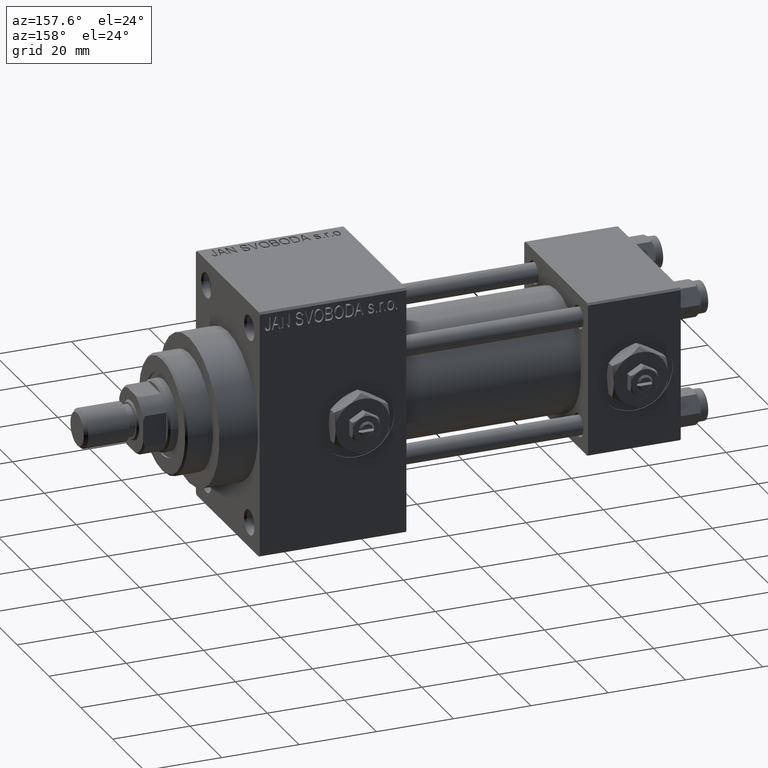
[diagram: clean part render]
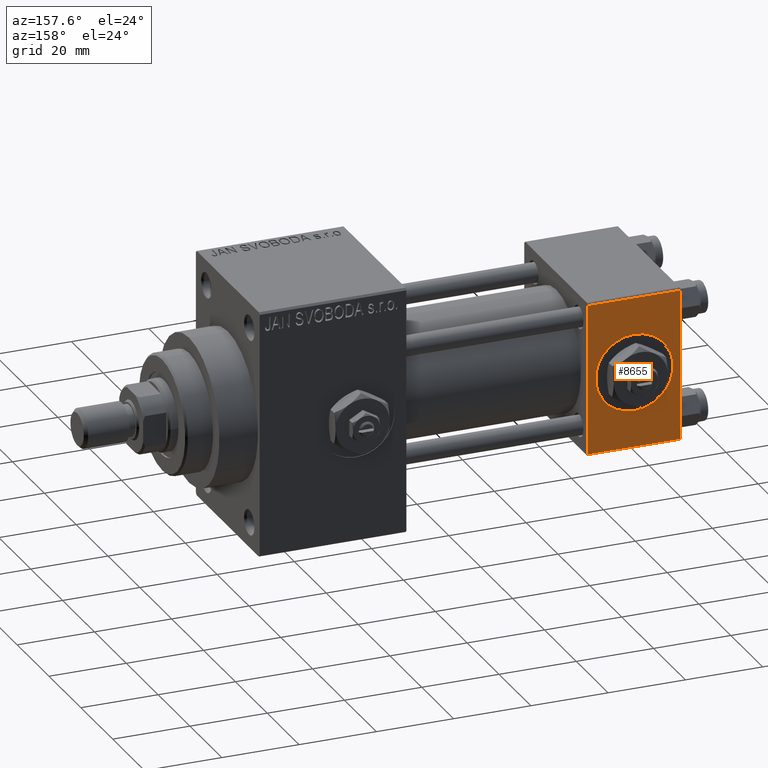
[diagram: same view with one face highlighted and labeled with its STEP entity id]
A machine part, auxiliary view. The second image highlights one B-rep face of the part: STEP entity #8655.
In plain terms, the highlighted planar face has unit normal (0, 1, 0).
Its self-contained STEP definition (entity closure, byte-faithful):
#194 = LINE ( 'NONE', #11214, #33033 ) ;
#407 = CARTESIAN_POINT ( 'NONE',  ( 0.000000000000000000, 20.00000000000000000, -19.50000000000002132 ) ) ;
#3618 = AXIS2_PLACEMENT_3D ( 'NONE', #43788, #20799, #6024 ) ;
#4758 = AXIS2_PLACEMENT_3D ( 'NONE', #15574, #39035, #31560 ) ;
#4800 = CIRCLE ( 'NONE', #36777, 10.00000000000000000 ) ;
#5260 = ORIENTED_EDGE ( 'NONE', *, *, #7456, .F. ) ;
#5314 = DIRECTION ( 'NONE',  ( -1.000000000000000000, 0.000000000000000000, 0.000000000000000000 ) ) ;
#5490 = CARTESIAN_POINT ( 'NONE',  ( 12.00000000000000178, 20.00000000000000000, -10.00000000000000000 ) ) ;
#6024 = DIRECTION ( 'NONE',  ( 0.000000000000000000, 0.000000000000000000, 1.000000000000000000 ) ) ;
#7045 = VERTEX_POINT ( 'NONE', #407 ) ;
#7456 = EDGE_CURVE ( 'NONE', #38946, #11430, #4800, .T. ) ;
#8380 = VECTOR ( 'NONE', #32151, 1000.000000000000000 ) ;
#8655 = ADVANCED_FACE ( 'NONE', ( #38309, #20049 ), #19076, .T. ) ;
#10803 = CIRCLE ( 'NONE', #3618, 10.00000000000000000 ) ;
#11060 = DIRECTION ( 'NONE',  ( 0.000000000000000000, 0.000000000000000000, 1.000000000000000000 ) ) ;
#11152 = CARTESIAN_POINT ( 'NONE',  ( 24.00000000000000000, 20.00000000000000000, 19.49999999999999289 ) ) ;
#11214 = CARTESIAN_POINT ( 'NONE',  ( 24.00000000000000000, 20.00000000000000000, 20.00000000000000000 ) ) ;
#11430 = VERTEX_POINT ( 'NONE', #5490 ) ;
#11896 = CARTESIAN_POINT ( 'NONE',  ( 24.00000000000000000, 20.00000000000000000, -19.50000000000002132 ) ) ;
#12404 = LINE ( 'NONE', #24635, #8380 ) ;
#12551 = DIRECTION ( 'NONE',  ( 1.000000000000000000, 0.000000000000000000, 0.000000000000000000 ) ) ;
#14182 = EDGE_CURVE ( 'NONE', #42843, #7045, #43827, .T. ) ;
#15574 = CARTESIAN_POINT ( 'NONE',  ( 24.00000000000000000, 20.00000000000000000, 20.00000000000000000 ) ) ;
#16346 = CARTESIAN_POINT ( 'NONE',  ( 24.00000000000000000, 20.00000000000000000, -19.50000000000002132 ) ) ;
#16655 = ORIENTED_EDGE ( 'NONE', *, *, #17284, .T. ) ;
#17284 = EDGE_CURVE ( 'NONE', #36329, #42843, #194, .T. ) ;
#18499 = DIRECTION ( 'NONE',  ( 0.000000000000000000, 0.000000000000000000, -1.000000000000000000 ) ) ;
#19055 = ORIENTED_EDGE ( 'NONE', *, *, #34405, .T. ) ;
#19076 = PLANE ( 'NONE',  #4758 ) ;
#20004 = VERTEX_POINT ( 'NONE', #21943 ) ;
#20049 = FACE_OUTER_BOUND ( 'NONE', #47214, .T. ) ;
#20064 = CARTESIAN_POINT ( 'NONE',  ( 24.00000000000000000, 20.00000000000000000, 19.49999999999999289 ) ) ;
#20799 = DIRECTION ( 'NONE',  ( 0.000000000000000000, 1.000000000000000000, 0.000000000000000000 ) ) ;
#21713 = ORIENTED_EDGE ( 'NONE', *, *, #43011, .F. ) ;
#21943 = CARTESIAN_POINT ( 'NONE',  ( 0.000000000000000000, 20.00000000000000000, 19.49999999999999289 ) ) ;
#24635 = CARTESIAN_POINT ( 'NONE',  ( 0.000000000000000000, 20.00000000000000000, 20.00000000000000000 ) ) ;
#28714 = EDGE_LOOP ( 'NONE', ( #5260, #21713 ) ) ;
#29669 = VECTOR ( 'NONE', #12551, 1000.000000000000000 ) ;
#31560 = DIRECTION ( 'NONE',  ( 0.000000000000000000, -0.000000000000000000, 1.000000000000000000 ) ) ;
#32151 = DIRECTION ( 'NONE',  ( 0.000000000000000000, 0.000000000000000000, -1.000000000000000000 ) ) ;
#33033 = VECTOR ( 'NONE', #18499, 1000.000000000000000 ) ;
#34405 = EDGE_CURVE ( 'NONE', #20004, #36329, #38818, .T. ) ;
#35619 = CARTESIAN_POINT ( 'NONE',  ( 12.00000000000000000, 20.00000000000000000, 10.00000000000000000 ) ) ;
#36329 = VERTEX_POINT ( 'NONE', #11152 ) ;
#36777 = AXIS2_PLACEMENT_3D ( 'NONE', #44836, #44580, #11060 ) ;
#38309 = FACE_BOUND ( 'NONE', #28714, .T. ) ;
#38818 = LINE ( 'NONE', #20064, #29669 ) ;
#38946 = VERTEX_POINT ( 'NONE', #35619 ) ;
#39035 = DIRECTION ( 'NONE',  ( -0.000000000000000000, 1.000000000000000000, 0.000000000000000000 ) ) ;
#39248 = ORIENTED_EDGE ( 'NONE', *, *, #46491, .F. ) ;
#42843 = VERTEX_POINT ( 'NONE', #11896 ) ;
#43011 = EDGE_CURVE ( 'NONE', #11430, #38946, #10803, .T. ) ;
#43788 = CARTESIAN_POINT ( 'NONE',  ( 12.00000000000000000, 20.00000000000000000, 0.000000000000000000 ) ) ;
#43827 = LINE ( 'NONE', #16346, #44878 ) ;
#44580 = DIRECTION ( 'NONE',  ( 0.000000000000000000, 1.000000000000000000, 0.000000000000000000 ) ) ;
#44836 = CARTESIAN_POINT ( 'NONE',  ( 12.00000000000000000, 20.00000000000000000, 0.000000000000000000 ) ) ;
#44878 = VECTOR ( 'NONE', #5314, 1000.000000000000000 ) ;
#46491 = EDGE_CURVE ( 'NONE', #20004, #7045, #12404, .T. ) ;
#47214 = EDGE_LOOP ( 'NONE', ( #16655, #47963, #39248, #19055 ) ) ;
#47963 = ORIENTED_EDGE ( 'NONE', *, *, #14182, .T. ) ;